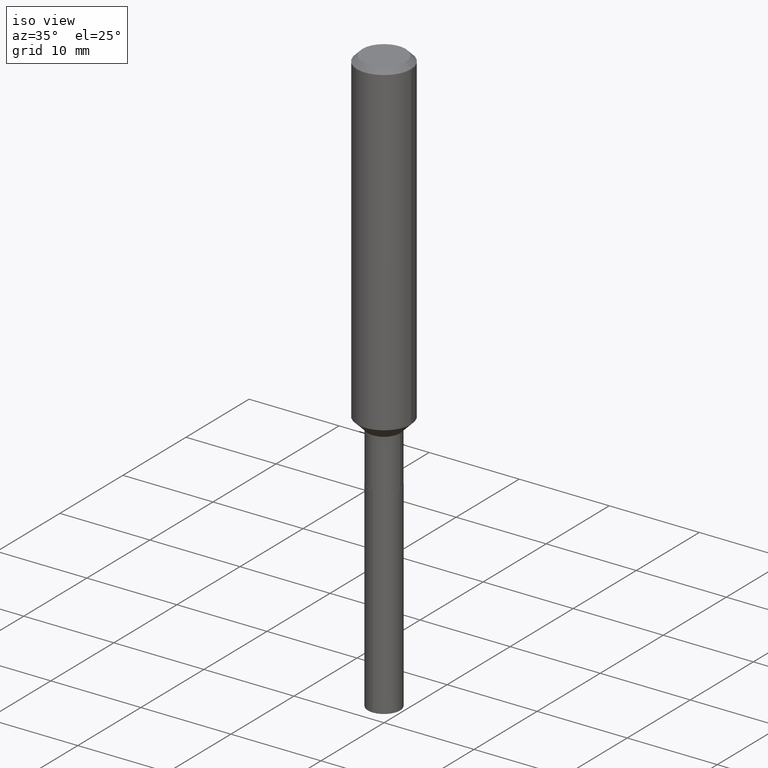
[diagram: clean part render]
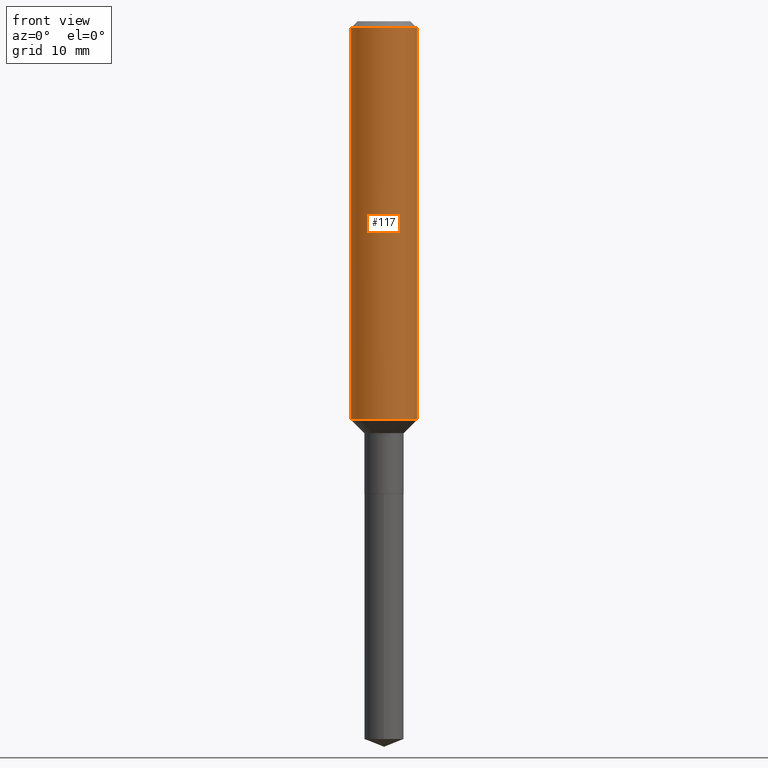
[diagram: tour spotlight — one face highlighted and labeled with its STEP entity id]
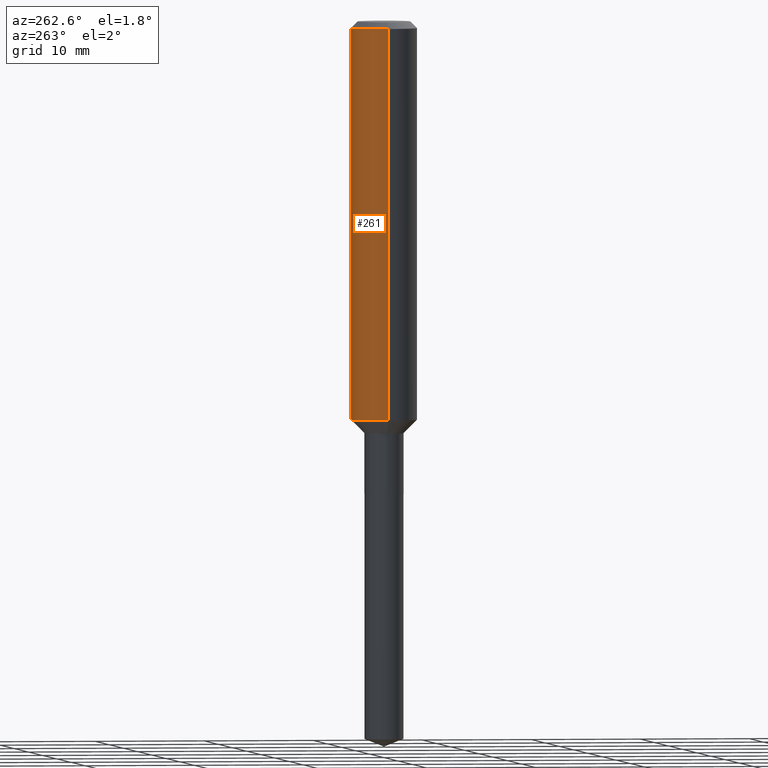
[diagram: tour spotlight — one face highlighted and labeled with its STEP entity id]
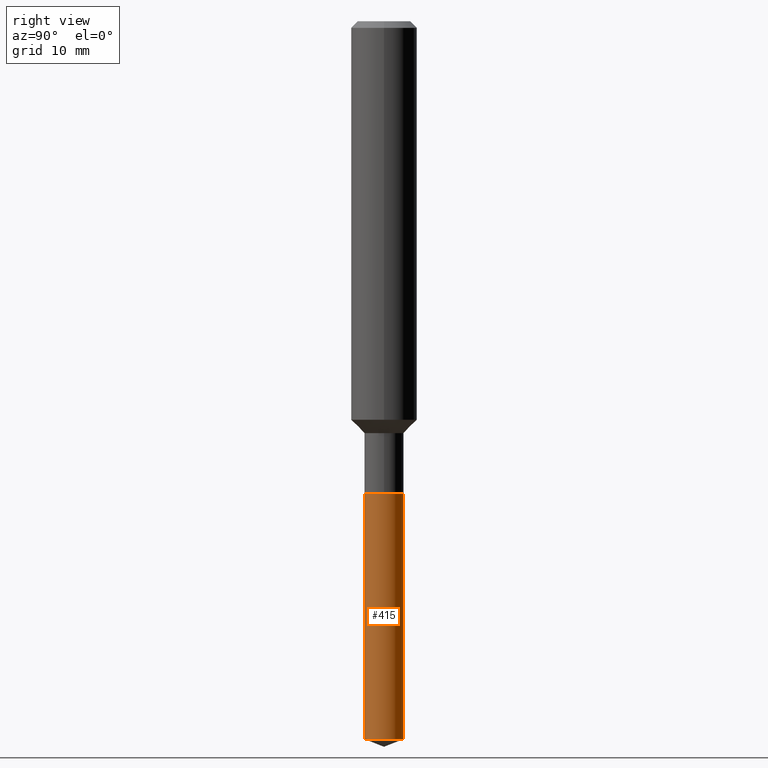
[diagram: tour spotlight — one face highlighted and labeled with its STEP entity id]
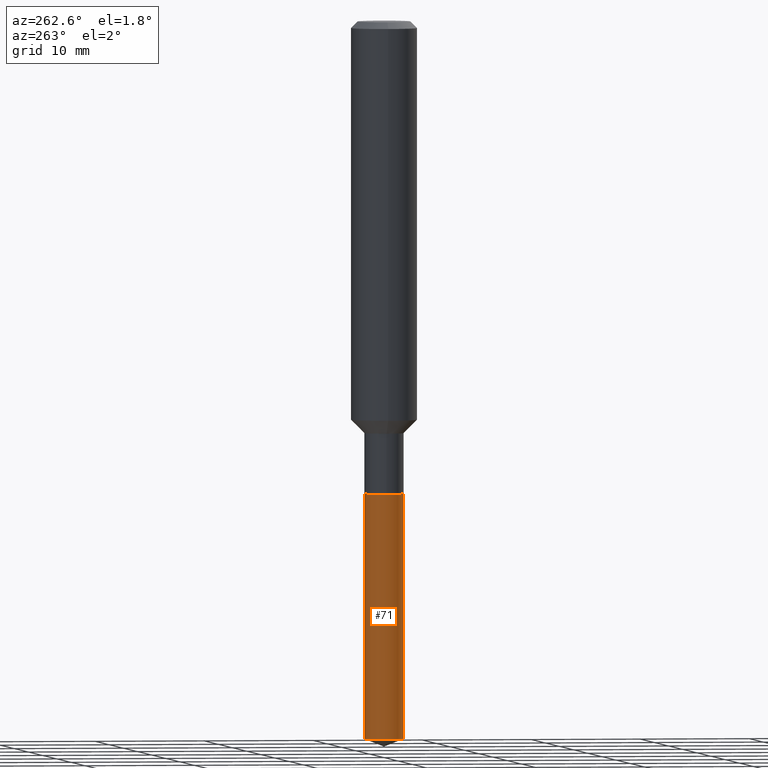
[diagram: tour spotlight — one face highlighted and labeled with its STEP entity id]
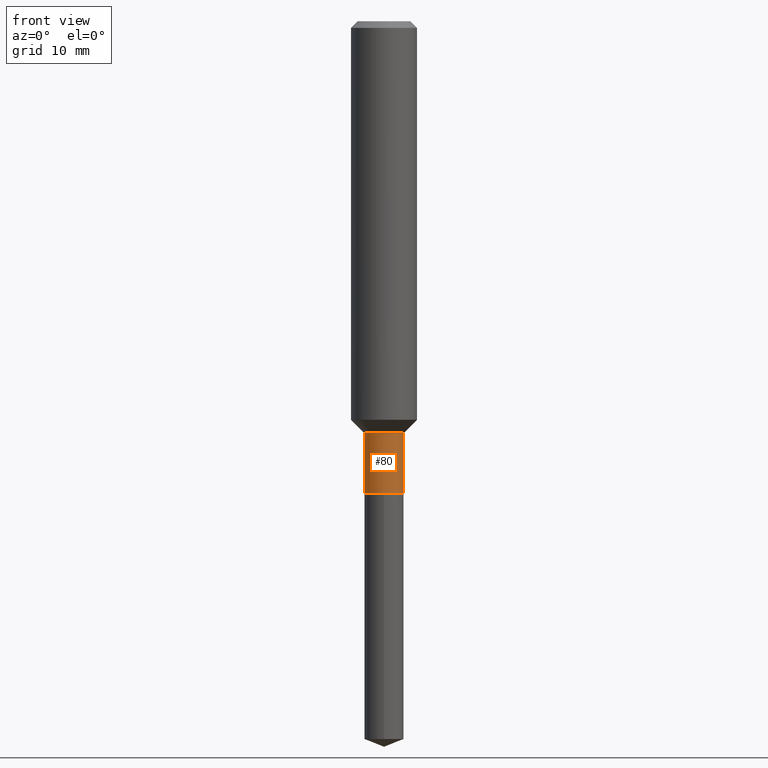
[diagram: tour spotlight — one face highlighted and labeled with its STEP entity id]
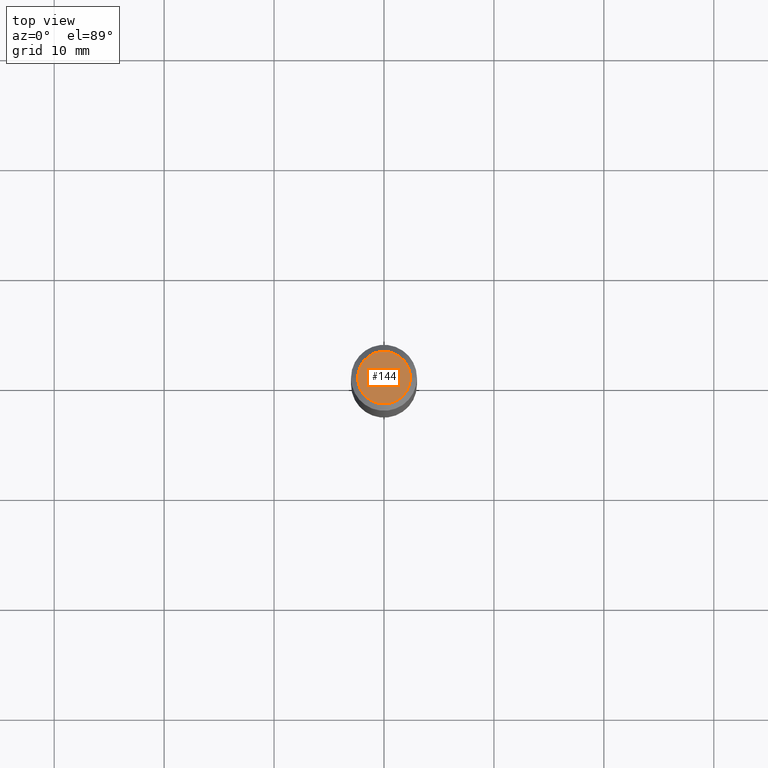
[diagram: tour spotlight — one face highlighted and labeled with its STEP entity id]
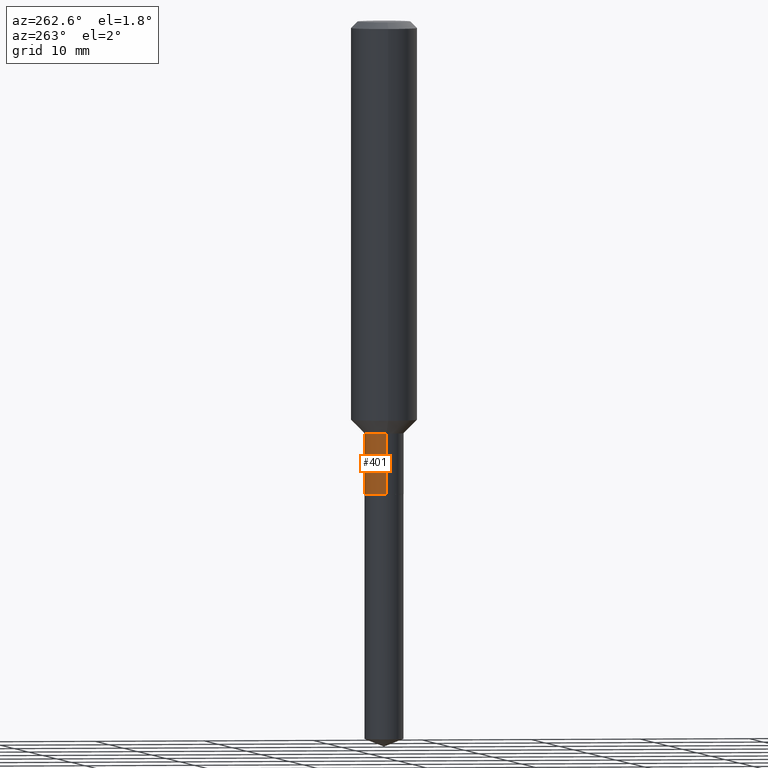
[diagram: tour spotlight — one face highlighted and labeled with its STEP entity id]
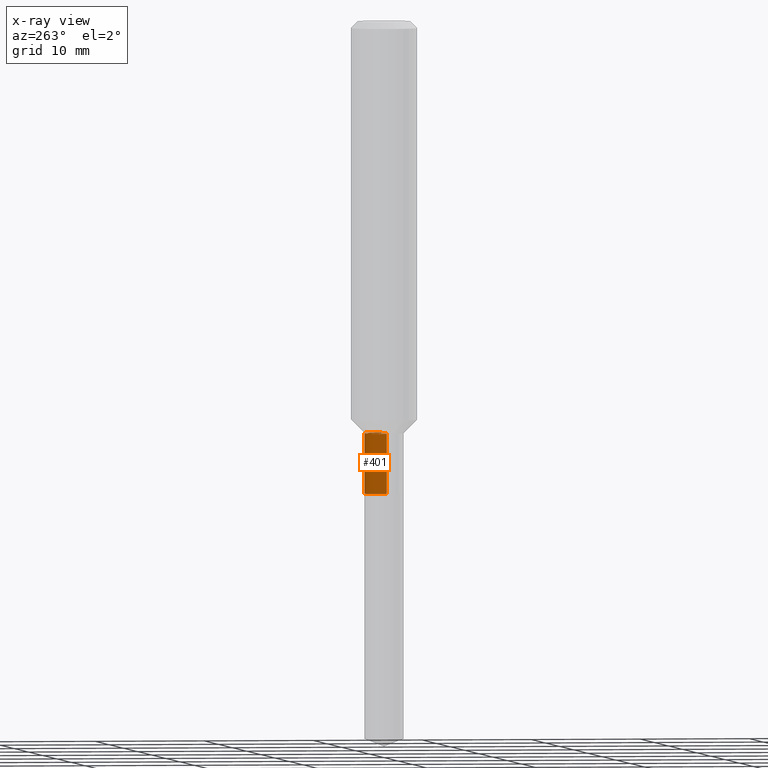
[diagram: x-ray of the same camera — body ghosted, this tour face saturated]
A machine part: a face-by-face anatomy tour. The part has 17 B-rep faces; the first image is the clean iso view, then the 7 largest visible faces are spotlighted one at a time (largest first), each with its STEP entity span.

Face 1 — front view, entity #117. In plain terms, the highlighted cylindrical surface (edge-blend (fillet) strip) has radius 2.9997 mm, axis along (-0, 0, 1).
Definition (entity closure, byte-faithful):
#9 = DIRECTION ( 'NONE',  ( -2.445468806185136877E-29, 3.491481338843145188E-15, 1.000000000000000000 ) ) ;
#42 = LINE ( 'NONE', #337, #305 ) ;
#57 = ORIENTED_EDGE ( 'NONE', *, *, #345, .T. ) ;
#86 = CIRCLE ( 'NONE', #147, 0.1181000000000001632 ) ;
#87 = EDGE_CURVE ( 'NONE', #243, #329, #153, .T. ) ;
#117 = ADVANCED_FACE ( 'NONE', ( #301 ), #225, .T. ) ;
#128 = CARTESIAN_POINT ( 'NONE',  ( 0.1180999999999999966, -9.071566814582237199E-16, -0.02362000000000014435 ) ) ;
#147 = AXIS2_PLACEMENT_3D ( 'NONE', #241, #387, #382 ) ;
#153 = LINE ( 'NONE', #454, #380 ) ;
#155 = EDGE_CURVE ( 'NONE', #200, #483, #42, .T. ) ;
#158 = CIRCLE ( 'NONE', #471, 0.1180999999999999966 ) ;
#187 = ORIENTED_EDGE ( 'NONE', *, *, #155, .F. ) ;
#199 = CARTESIAN_POINT ( 'NONE',  ( 0.1181000000000001632, -5.807380910897803330E-15, -1.427100000000000257 ) ) ;
#200 = VERTEX_POINT ( 'NONE', #378 ) ;
#217 = CARTESIAN_POINT ( 'NONE',  ( -0.1180999999999999966, -1.693429933010585093E-15, -0.02362000000000014435 ) ) ;
#225 = CYLINDRICAL_SURFACE ( 'NONE', #449, 0.1181000000000000799 ) ;
#241 = CARTESIAN_POINT ( 'NONE',  ( 3.489928533306808856E-29, -4.982693018663053490E-15, -1.427100000000000257 ) ) ;
#243 = VERTEX_POINT ( 'NONE', #199 ) ;
#284 = DIRECTION ( 'NONE',  ( -2.445468806185136597E-29, 3.491481338843145583E-15, 1.000000000000000000 ) ) ;
#292 = DIRECTION ( 'NONE',  ( 1.000000000000000000, -6.982962677686266711E-15, 0.000000000000000000 ) ) ;
#298 = DIRECTION ( 'NONE',  ( 1.000000000000000000, -6.982962677686266711E-15, 4.876176775795936353E-29 ) ) ;
#301 = FACE_OUTER_BOUND ( 'NONE', #423, .T. ) ;
#305 = VECTOR ( 'NONE', #456, 39.37007874015748143 ) ;
#329 = VERTEX_POINT ( 'NONE', #128 ) ;
#337 = CARTESIAN_POINT ( 'NONE',  ( -0.1181000000000000799, 8.391509709326788873E-16, -5.809262341591047988E-30 ) ) ;
#345 = EDGE_CURVE ( 'NONE', #200, #243, #86, .T. ) ;
#365 = ORIENTED_EDGE ( 'NONE', *, *, #467, .F. ) ;
#372 = CARTESIAN_POINT ( 'NONE',  ( 0.000000000000000000, 0.000000000000000000, 0.000000000000000000 ) ) ;
#378 = CARTESIAN_POINT ( 'NONE',  ( -0.1181000000000001632, -4.143542047730375293E-15, -1.427100000000000257 ) ) ;
#380 = VECTOR ( 'NONE', #9, 39.37007874015748143 ) ;
#382 = DIRECTION ( 'NONE',  ( 1.000000000000000000, -6.982962677686263555E-15, 0.000000000000000000 ) ) ;
#387 = DIRECTION ( 'NONE',  ( -2.445468806185136597E-29, 3.491481338843145583E-15, 1.000000000000000000 ) ) ;
#391 = ORIENTED_EDGE ( 'NONE', *, *, #87, .T. ) ;
#400 = CARTESIAN_POINT ( 'NONE',  ( 5.776197320209328408E-31, -8.246878922347560526E-17, -0.02362000000000014435 ) ) ;
#412 = DIRECTION ( 'NONE',  ( -2.445468806185136597E-29, 3.491481338843145583E-15, 1.000000000000000000 ) ) ;
#423 = EDGE_LOOP ( 'NONE', ( #187, #57, #391, #365 ) ) ;
#449 = AXIS2_PLACEMENT_3D ( 'NONE', #372, #412, #298 ) ;
#454 = CARTESIAN_POINT ( 'NONE',  ( 0.1181000000000000799, -8.246878922347486570E-16, 5.758764772215004644E-30 ) ) ;
#456 = DIRECTION ( 'NONE',  ( -2.445468806185136877E-29, 3.491481338843145188E-15, 1.000000000000000000 ) ) ;
#467 = EDGE_CURVE ( 'NONE', #483, #329, #158, .T. ) ;
#471 = AXIS2_PLACEMENT_3D ( 'NONE', #400, #284, #292 ) ;
#483 = VERTEX_POINT ( 'NONE', #217 ) ;

Face 2 — auxiliary view, entity #261. In plain terms, the highlighted cylindrical surface (edge-blend (fillet) strip) has radius 2.9997 mm, axis along (-0, 0, 1).
Definition (entity closure, byte-faithful):
#9 = DIRECTION ( 'NONE',  ( -2.445468806185136877E-29, 3.491481338843145188E-15, 1.000000000000000000 ) ) ;
#17 = CYLINDRICAL_SURFACE ( 'NONE', #234, 0.1181000000000000799 ) ;
#42 = LINE ( 'NONE', #337, #305 ) ;
#43 = AXIS2_PLACEMENT_3D ( 'NONE', #156, #265, #343 ) ;
#50 = CARTESIAN_POINT ( 'NONE',  ( 0.000000000000000000, 0.000000000000000000, 0.000000000000000000 ) ) ;
#56 = DIRECTION ( 'NONE',  ( -2.445468806185136597E-29, 3.491481338843145583E-15, 1.000000000000000000 ) ) ;
#67 = CIRCLE ( 'NONE', #394, 0.1180999999999999966 ) ;
#76 = EDGE_CURVE ( 'NONE', #243, #200, #106, .T. ) ;
#87 = EDGE_CURVE ( 'NONE', #243, #329, #153, .T. ) ;
#96 = ORIENTED_EDGE ( 'NONE', *, *, #76, .T. ) ;
#103 = ORIENTED_EDGE ( 'NONE', *, *, #230, .F. ) ;
#106 = CIRCLE ( 'NONE', #43, 0.1181000000000001632 ) ;
#128 = CARTESIAN_POINT ( 'NONE',  ( 0.1180999999999999966, -9.071566814582237199E-16, -0.02362000000000014435 ) ) ;
#136 = EDGE_LOOP ( 'NONE', ( #96, #182, #103, #360 ) ) ;
#153 = LINE ( 'NONE', #454, #380 ) ;
#155 = EDGE_CURVE ( 'NONE', #200, #483, #42, .T. ) ;
#156 = CARTESIAN_POINT ( 'NONE',  ( 3.489928533306808856E-29, -4.982693018663053490E-15, -1.427100000000000257 ) ) ;
#161 = DIRECTION ( 'NONE',  ( -2.445468806185136597E-29, 3.491481338843145583E-15, 1.000000000000000000 ) ) ;
#182 = ORIENTED_EDGE ( 'NONE', *, *, #155, .T. ) ;
#199 = CARTESIAN_POINT ( 'NONE',  ( 0.1181000000000001632, -5.807380910897803330E-15, -1.427100000000000257 ) ) ;
#200 = VERTEX_POINT ( 'NONE', #378 ) ;
#217 = CARTESIAN_POINT ( 'NONE',  ( -0.1180999999999999966, -1.693429933010585093E-15, -0.02362000000000014435 ) ) ;
#230 = EDGE_CURVE ( 'NONE', #329, #483, #67, .T. ) ;
#234 = AXIS2_PLACEMENT_3D ( 'NONE', #50, #56, #426 ) ;
#243 = VERTEX_POINT ( 'NONE', #199 ) ;
#261 = ADVANCED_FACE ( 'NONE', ( #384 ), #17, .T. ) ;
#265 = DIRECTION ( 'NONE',  ( -2.445468806185136597E-29, 3.491481338843145583E-15, 1.000000000000000000 ) ) ;
#305 = VECTOR ( 'NONE', #456, 39.37007874015748143 ) ;
#329 = VERTEX_POINT ( 'NONE', #128 ) ;
#337 = CARTESIAN_POINT ( 'NONE',  ( -0.1181000000000000799, 8.391509709326788873E-16, -5.809262341591047988E-30 ) ) ;
#343 = DIRECTION ( 'NONE',  ( 1.000000000000000000, -6.982962677686263555E-15, 0.000000000000000000 ) ) ;
#348 = DIRECTION ( 'NONE',  ( 1.000000000000000000, -6.982962677686266711E-15, 0.000000000000000000 ) ) ;
#360 = ORIENTED_EDGE ( 'NONE', *, *, #87, .F. ) ;
#378 = CARTESIAN_POINT ( 'NONE',  ( -0.1181000000000001632, -4.143542047730375293E-15, -1.427100000000000257 ) ) ;
#380 = VECTOR ( 'NONE', #9, 39.37007874015748143 ) ;
#384 = FACE_OUTER_BOUND ( 'NONE', #136, .T. ) ;
#394 = AXIS2_PLACEMENT_3D ( 'NONE', #462, #161, #348 ) ;
#426 = DIRECTION ( 'NONE',  ( 1.000000000000000000, -6.982962677686266711E-15, 4.876176775795936353E-29 ) ) ;
#454 = CARTESIAN_POINT ( 'NONE',  ( 0.1181000000000000799, -8.246878922347486570E-16, 5.758764772215004644E-30 ) ) ;
#456 = DIRECTION ( 'NONE',  ( -2.445468806185136877E-29, 3.491481338843145188E-15, 1.000000000000000000 ) ) ;
#462 = CARTESIAN_POINT ( 'NONE',  ( 5.776197320209328408E-31, -8.246878922347560526E-17, -0.02362000000000014435 ) ) ;
#483 = VERTEX_POINT ( 'NONE', #217 ) ;

Face 3 — right view, entity #415. In plain terms, the highlighted cylindrical surface (edge-blend (fillet) strip) has radius 1.7856 mm, axis along (-0, 0, 1).
Definition (entity closure, byte-faithful):
#26 = CYLINDRICAL_SURFACE ( 'NONE', #458, 0.07029999999999998750 ) ;
#28 = FACE_OUTER_BOUND ( 'NONE', #68, .T. ) ;
#65 = VERTEX_POINT ( 'NONE', #233 ) ;
#68 = EDGE_LOOP ( 'NONE', ( #469, #100, #253, #364 ) ) ;
#69 = EDGE_CURVE ( 'NONE', #65, #317, #349, .T. ) ;
#70 = CARTESIAN_POINT ( 'NONE',  ( 6.297271338363965962E-29, -8.957480559017389786E-15, -2.570308093564269925 ) ) ;
#79 = DIRECTION ( 'NONE',  ( -6.982962677686265133E-15, -1.000000000000000000, 3.885985766236505386E-15 ) ) ;
#97 = DIRECTION ( 'NONE',  ( -2.458755392801124344E-29, 3.472454190583505312E-15, 1.000000000000000000 ) ) ;
#100 = ORIENTED_EDGE ( 'NONE', *, *, #407, .T. ) ;
#137 = DIRECTION ( 'NONE',  ( -6.982962677686266711E-15, -1.000000000000000000, 3.885985766236506175E-15 ) ) ;
#139 = CIRCLE ( 'NONE', #174, 0.07030000000000000138 ) ;
#141 = DIRECTION ( 'NONE',  ( -2.458755392801124064E-29, 3.472454190583504917E-15, 1.000000000000000000 ) ) ;
#174 = AXIS2_PLACEMENT_3D ( 'NONE', #416, #263, #79 ) ;
#180 = EDGE_CURVE ( 'NONE', #185, #324, #139, .T. ) ;
#185 = VERTEX_POINT ( 'NONE', #231 ) ;
#201 = CARTESIAN_POINT ( 'NONE',  ( 4.995115432394133521E-16, 0.07029999999999408944, -1.692500000000000338 ) ) ;
#231 = CARTESIAN_POINT ( 'NONE',  ( -4.909022762413031377E-16, -0.07030000000000589944, -1.692499999999999671 ) ) ;
#233 = CARTESIAN_POINT ( 'NONE',  ( -4.909022762412812468E-16, -0.07030000000000892479, -2.570308093564269925 ) ) ;
#248 = CARTESIAN_POINT ( 'NONE',  ( -4.909022762413030391E-16, -0.07030000000000589944, -1.692499999999999671 ) ) ;
#253 = ORIENTED_EDGE ( 'NONE', *, *, #180, .F. ) ;
#263 = DIRECTION ( 'NONE',  ( -2.458755392801124064E-29, 3.472454190583504917E-15, 1.000000000000000000 ) ) ;
#286 = LINE ( 'NONE', #248, #421 ) ;
#317 = VERTEX_POINT ( 'NONE', #461 ) ;
#321 = CARTESIAN_POINT ( 'NONE',  ( 4.995115432393916584E-16, 0.07029999999999408944, -1.692500000000000338 ) ) ;
#323 = CARTESIAN_POINT ( 'NONE',  ( 4.138955954468343780E-29, -5.909332165992023872E-15, -1.692500000000000115 ) ) ;
#324 = VERTEX_POINT ( 'NONE', #201 ) ;
#333 = DIRECTION ( 'NONE',  ( -6.982962677686265133E-15, -1.000000000000000000, 0.000000000000000000 ) ) ;
#349 = CIRCLE ( 'NONE', #413, 0.07029999999999998750 ) ;
#364 = ORIENTED_EDGE ( 'NONE', *, *, #489, .F. ) ;
#407 = EDGE_CURVE ( 'NONE', #317, #324, #482, .T. ) ;
#413 = AXIS2_PLACEMENT_3D ( 'NONE', #70, #418, #333 ) ;
#415 = ADVANCED_FACE ( 'NONE', ( #28 ), #26, .T. ) ;
#416 = CARTESIAN_POINT ( 'NONE',  ( 4.138955954468343780E-29, -5.909332165992023872E-15, -1.692500000000000115 ) ) ;
#418 = DIRECTION ( 'NONE',  ( -2.458755392801124064E-29, 3.472454190583504917E-15, 1.000000000000000000 ) ) ;
#421 = VECTOR ( 'NONE', #97, 39.37007874015748143 ) ;
#458 = AXIS2_PLACEMENT_3D ( 'NONE', #323, #141, #137 ) ;
#461 = CARTESIAN_POINT ( 'NONE',  ( 4.995115432394130563E-16, 0.07029999999999100857, -2.570308093564269925 ) ) ;
#463 = VECTOR ( 'NONE', #475, 39.37007874015748143 ) ;
#469 = ORIENTED_EDGE ( 'NONE', *, *, #69, .T. ) ;
#475 = DIRECTION ( 'NONE',  ( -2.458755392801124344E-29, 3.472454190583505312E-15, 1.000000000000000000 ) ) ;
#482 = LINE ( 'NONE', #321, #463 ) ;
#489 = EDGE_CURVE ( 'NONE', #65, #185, #286, .T. ) ;

Face 4 — auxiliary view, entity #71. In plain terms, the highlighted cylindrical surface (edge-blend (fillet) strip) has radius 1.7856 mm, axis along (-0, 0, 1).
Definition (entity closure, byte-faithful):
#1 = DIRECTION ( 'NONE',  ( -2.458755392801124064E-29, 3.472454190583504917E-15, 1.000000000000000000 ) ) ;
#33 = CARTESIAN_POINT ( 'NONE',  ( 4.138955954468343780E-29, -5.909332165992023872E-15, -1.692500000000000115 ) ) ;
#53 = CIRCLE ( 'NONE', #204, 0.07029999999999998750 ) ;
#65 = VERTEX_POINT ( 'NONE', #233 ) ;
#71 = ADVANCED_FACE ( 'NONE', ( #487 ), #223, .T. ) ;
#97 = DIRECTION ( 'NONE',  ( -2.458755392801124344E-29, 3.472454190583505312E-15, 1.000000000000000000 ) ) ;
#160 = EDGE_CURVE ( 'NONE', #324, #185, #258, .T. ) ;
#164 = EDGE_LOOP ( 'NONE', ( #282, #474, #436, #176 ) ) ;
#176 = ORIENTED_EDGE ( 'NONE', *, *, #160, .F. ) ;
#185 = VERTEX_POINT ( 'NONE', #231 ) ;
#201 = CARTESIAN_POINT ( 'NONE',  ( 4.995115432394133521E-16, 0.07029999999999408944, -1.692500000000000338 ) ) ;
#204 = AXIS2_PLACEMENT_3D ( 'NONE', #444, #254, #250 ) ;
#223 = CYLINDRICAL_SURFACE ( 'NONE', #457, 0.07029999999999998750 ) ;
#229 = DIRECTION ( 'NONE',  ( -6.982962677686266711E-15, -1.000000000000000000, 3.885985766236506175E-15 ) ) ;
#231 = CARTESIAN_POINT ( 'NONE',  ( -4.909022762413031377E-16, -0.07030000000000589944, -1.692499999999999671 ) ) ;
#233 = CARTESIAN_POINT ( 'NONE',  ( -4.909022762412812468E-16, -0.07030000000000892479, -2.570308093564269925 ) ) ;
#248 = CARTESIAN_POINT ( 'NONE',  ( -4.909022762413030391E-16, -0.07030000000000589944, -1.692499999999999671 ) ) ;
#250 = DIRECTION ( 'NONE',  ( -6.982962677686265133E-15, -1.000000000000000000, 0.000000000000000000 ) ) ;
#254 = DIRECTION ( 'NONE',  ( -2.458755392801124064E-29, 3.472454190583504917E-15, 1.000000000000000000 ) ) ;
#258 = CIRCLE ( 'NONE', #283, 0.07030000000000000138 ) ;
#282 = ORIENTED_EDGE ( 'NONE', *, *, #407, .F. ) ;
#283 = AXIS2_PLACEMENT_3D ( 'NONE', #304, #307, #409 ) ;
#286 = LINE ( 'NONE', #248, #421 ) ;
#304 = CARTESIAN_POINT ( 'NONE',  ( 4.138955954468343780E-29, -5.909332165992023872E-15, -1.692500000000000115 ) ) ;
#307 = DIRECTION ( 'NONE',  ( -2.458755392801124064E-29, 3.472454190583504917E-15, 1.000000000000000000 ) ) ;
#317 = VERTEX_POINT ( 'NONE', #461 ) ;
#321 = CARTESIAN_POINT ( 'NONE',  ( 4.995115432393916584E-16, 0.07029999999999408944, -1.692500000000000338 ) ) ;
#324 = VERTEX_POINT ( 'NONE', #201 ) ;
#407 = EDGE_CURVE ( 'NONE', #317, #324, #482, .T. ) ;
#409 = DIRECTION ( 'NONE',  ( -6.982962677686265133E-15, -1.000000000000000000, 3.885985766236505386E-15 ) ) ;
#421 = VECTOR ( 'NONE', #97, 39.37007874015748143 ) ;
#436 = ORIENTED_EDGE ( 'NONE', *, *, #489, .T. ) ;
#444 = CARTESIAN_POINT ( 'NONE',  ( 6.297271338363965962E-29, -8.957480559017389786E-15, -2.570308093564269925 ) ) ;
#457 = AXIS2_PLACEMENT_3D ( 'NONE', #33, #1, #229 ) ;
#461 = CARTESIAN_POINT ( 'NONE',  ( 4.995115432394130563E-16, 0.07029999999999100857, -2.570308093564269925 ) ) ;
#463 = VECTOR ( 'NONE', #475, 39.37007874015748143 ) ;
#474 = ORIENTED_EDGE ( 'NONE', *, *, #477, .T. ) ;
#475 = DIRECTION ( 'NONE',  ( -2.458755392801124344E-29, 3.472454190583505312E-15, 1.000000000000000000 ) ) ;
#477 = EDGE_CURVE ( 'NONE', #317, #65, #53, .T. ) ;
#482 = LINE ( 'NONE', #321, #463 ) ;
#487 = FACE_OUTER_BOUND ( 'NONE', #164, .T. ) ;
#489 = EDGE_CURVE ( 'NONE', #65, #185, #286, .T. ) ;

Face 5 — front view, entity #80. In plain terms, the highlighted cylindrical surface (edge-blend (fillet) strip) has radius 1.7856 mm, axis along (-0, 0, 1).
Definition (entity closure, byte-faithful):
#10 = EDGE_CURVE ( 'NONE', #425, #445, #310, .T. ) ;
#15 = AXIS2_PLACEMENT_3D ( 'NONE', #25, #138, #399 ) ;
#25 = CARTESIAN_POINT ( 'NONE',  ( 4.137733220065251539E-29, -5.907586425322602368E-15, -1.692000000000000171 ) ) ;
#36 = CYLINDRICAL_SURFACE ( 'NONE', #318, 0.07029999999999998750 ) ;
#37 = VECTOR ( 'NONE', #54, 39.37007874015748143 ) ;
#38 = DIRECTION ( 'NONE',  ( 1.000000000000000000, -6.982962677686266711E-15, 4.876176775795935232E-29 ) ) ;
#45 = VECTOR ( 'NONE', #220, 39.37007874015748143 ) ;
#47 = CARTESIAN_POINT ( 'NONE',  ( 0.07029999999999998750, -4.909022762413444543E-16, 3.427952273384541736E-30 ) ) ;
#52 = CIRCLE ( 'NONE', #157, 0.07029999999999997362 ) ;
#54 = DIRECTION ( 'NONE',  ( -2.445468806185136877E-29, 3.491481338843145188E-15, 1.000000000000000000 ) ) ;
#73 = DIRECTION ( 'NONE',  ( -2.445468806185136597E-29, 3.491481338843145583E-15, 1.000000000000000000 ) ) ;
#80 = ADVANCED_FACE ( 'NONE', ( #303 ), #36, .T. ) ;
#99 = CARTESIAN_POINT ( 'NONE',  ( -0.07029999999999998750, 4.995115432393503418E-16, -3.458011368449198169E-30 ) ) ;
#129 = DIRECTION ( 'NONE',  ( -2.445468806185136597E-29, 3.491481338843145583E-15, 1.000000000000000000 ) ) ;
#138 = DIRECTION ( 'NONE',  ( -2.445468806185136597E-29, 3.491481338843145583E-15, 1.000000000000000000 ) ) ;
#143 = CARTESIAN_POINT ( 'NONE',  ( -0.07030000000000000138, -5.029074582751829501E-15, -1.692000000000000171 ) ) ;
#157 = AXIS2_PLACEMENT_3D ( 'NONE', #314, #129, #279 ) ;
#162 = ORIENTED_EDGE ( 'NONE', *, *, #10, .T. ) ;
#172 = CARTESIAN_POINT ( 'NONE',  ( -0.07029999999999997362, -5.029074582751829501E-15, -1.474900000000000100 ) ) ;
#220 = DIRECTION ( 'NONE',  ( -2.445468806185136877E-29, 3.491481338843145188E-15, 1.000000000000000000 ) ) ;
#239 = ORIENTED_EDGE ( 'NONE', *, *, #355, .T. ) ;
#242 = EDGE_CURVE ( 'NONE', #476, #293, #52, .T. ) ;
#279 = DIRECTION ( 'NONE',  ( 1.000000000000000000, -6.982962677686268288E-15, 0.000000000000000000 ) ) ;
#285 = EDGE_LOOP ( 'NONE', ( #442, #162, #239, #427 ) ) ;
#288 = LINE ( 'NONE', #99, #45 ) ;
#293 = VERTEX_POINT ( 'NONE', #466 ) ;
#303 = FACE_OUTER_BOUND ( 'NONE', #285, .T. ) ;
#310 = CIRCLE ( 'NONE', #15, 0.07030000000000000138 ) ;
#314 = CARTESIAN_POINT ( 'NONE',  ( 3.606821942242458368E-29, -5.149585826659756331E-15, -1.474900000000000100 ) ) ;
#316 = LINE ( 'NONE', #47, #37 ) ;
#318 = AXIS2_PLACEMENT_3D ( 'NONE', #379, #73, #38 ) ;
#355 = EDGE_CURVE ( 'NONE', #445, #293, #316, .T. ) ;
#379 = CARTESIAN_POINT ( 'NONE',  ( 0.000000000000000000, 0.000000000000000000, 0.000000000000000000 ) ) ;
#399 = DIRECTION ( 'NONE',  ( 1.000000000000000000, -6.982962677686265133E-15, 0.000000000000000000 ) ) ;
#425 = VERTEX_POINT ( 'NONE', #143 ) ;
#427 = ORIENTED_EDGE ( 'NONE', *, *, #242, .F. ) ;
#437 = EDGE_CURVE ( 'NONE', #425, #476, #288, .T. ) ;
#440 = CARTESIAN_POINT ( 'NONE',  ( 0.07030000000000000138, -6.398488701563947316E-15, -1.692000000000000171 ) ) ;
#442 = ORIENTED_EDGE ( 'NONE', *, *, #437, .F. ) ;
#445 = VERTEX_POINT ( 'NONE', #440 ) ;
#466 = CARTESIAN_POINT ( 'NONE',  ( 0.07029999999999997362, -5.640488102901100489E-15, -1.474900000000000100 ) ) ;
#476 = VERTEX_POINT ( 'NONE', #172 ) ;

Face 6 — top view, entity #144. In plain terms, the highlighted planar face has unit normal (0, -0, -1).
Definition (entity closure, byte-faithful):
#49 = VERTEX_POINT ( 'NONE', #406 ) ;
#62 = DIRECTION ( 'NONE',  ( 1.000000000000000000, -6.982962677686267499E-15, 4.875432709231658792E-29 ) ) ;
#82 = DIRECTION ( 'NONE',  ( -1.000000000000000000, 6.982962677686265922E-15, -4.876176775795935793E-29 ) ) ;
#95 = DIRECTION ( 'NONE',  ( 1.000000000000000000, -6.982962677686267499E-15, 4.875432709231658792E-29 ) ) ;
#102 = DIRECTION ( 'NONE',  ( -2.445468806185136597E-29, 3.491481338843145583E-15, 1.000000000000000000 ) ) ;
#132 = AXIS2_PLACEMENT_3D ( 'NONE', #432, #102, #62 ) ;
#144 = ADVANCED_FACE ( 'NONE', ( #191 ), #339, .F. ) ;
#149 = CIRCLE ( 'NONE', #132, 0.09447999999999998066 ) ;
#189 = CARTESIAN_POINT ( 'NONE',  ( 3.301506705810441154E-46, -4.713676585956823162E-32, -1.350050631380041873E-17 ) ) ;
#191 = FACE_OUTER_BOUND ( 'NONE', #388, .T. ) ;
#195 = AXIS2_PLACEMENT_3D ( 'NONE', #420, #383, #95 ) ;
#202 = ORIENTED_EDGE ( 'NONE', *, *, #481, .T. ) ;
#246 = ORIENTED_EDGE ( 'NONE', *, *, #247, .T. ) ;
#247 = EDGE_CURVE ( 'NONE', #385, #49, #327, .T. ) ;
#327 = CIRCLE ( 'NONE', #195, 0.09447999999999998066 ) ;
#336 = DIRECTION ( 'NONE',  ( 2.438088387897960049E-29, -3.491481338843145188E-15, -1.000000000000000000 ) ) ;
#339 = PLANE ( 'NONE',  #350 ) ;
#350 = AXIS2_PLACEMENT_3D ( 'NONE', #189, #336, #82 ) ;
#358 = CARTESIAN_POINT ( 'NONE',  ( 0.09447999999999998066, -7.704367267948738690E-16, -2.700101262759583929E-17 ) ) ;
#383 = DIRECTION ( 'NONE',  ( -2.445468806185136597E-29, 3.491481338843145583E-15, 1.000000000000000000 ) ) ;
#385 = VERTEX_POINT ( 'NONE', #358 ) ;
#388 = EDGE_LOOP ( 'NONE', ( #202, #246 ) ) ;
#406 = CARTESIAN_POINT ( 'NONE',  ( -0.09447999999999998066, 7.009847083995354710E-16, -2.700101262760559836E-17 ) ) ;
#420 = CARTESIAN_POINT ( 'NONE',  ( 6.603013411620882309E-46, -9.427353171913646324E-32, -2.700101262760083747E-17 ) ) ;
#432 = CARTESIAN_POINT ( 'NONE',  ( 6.603013411620882309E-46, -9.427353171913646324E-32, -2.700101262760083747E-17 ) ) ;
#481 = EDGE_CURVE ( 'NONE', #49, #385, #149, .T. ) ;

Face 7 — auxiliary view, entity #401. An x-ray twin of the same camera follows (body ghosted, this face saturated) — the face is partly hidden behind the body. In plain terms, the highlighted cylindrical surface (edge-blend (fillet) strip) has radius 1.7856 mm, axis along (-0, 0, 1).
Definition (entity closure, byte-faithful):
#18 = ORIENTED_EDGE ( 'NONE', *, *, #320, .T. ) ;
#21 = DIRECTION ( 'NONE',  ( -2.445468806185136597E-29, 3.491481338843145583E-15, 1.000000000000000000 ) ) ;
#37 = VECTOR ( 'NONE', #54, 39.37007874015748143 ) ;
#45 = VECTOR ( 'NONE', #220, 39.37007874015748143 ) ;
#47 = CARTESIAN_POINT ( 'NONE',  ( 0.07029999999999998750, -4.909022762413444543E-16, 3.427952273384541736E-30 ) ) ;
#54 = DIRECTION ( 'NONE',  ( -2.445468806185136877E-29, 3.491481338843145188E-15, 1.000000000000000000 ) ) ;
#64 = CYLINDRICAL_SURFACE ( 'NONE', #386, 0.07029999999999998750 ) ;
#66 = DIRECTION ( 'NONE',  ( 1.000000000000000000, -6.982962677686266711E-15, 4.876176775795935232E-29 ) ) ;
#89 = DIRECTION ( 'NONE',  ( 1.000000000000000000, -6.982962677686265133E-15, 0.000000000000000000 ) ) ;
#99 = CARTESIAN_POINT ( 'NONE',  ( -0.07029999999999998750, 4.995115432393503418E-16, -3.458011368449198169E-30 ) ) ;
#121 = DIRECTION ( 'NONE',  ( -2.445468806185136597E-29, 3.491481338843145583E-15, 1.000000000000000000 ) ) ;
#143 = CARTESIAN_POINT ( 'NONE',  ( -0.07030000000000000138, -5.029074582751829501E-15, -1.692000000000000171 ) ) ;
#172 = CARTESIAN_POINT ( 'NONE',  ( -0.07029999999999997362, -5.029074582751829501E-15, -1.474900000000000100 ) ) ;
#177 = CARTESIAN_POINT ( 'NONE',  ( 0.000000000000000000, 0.000000000000000000, 0.000000000000000000 ) ) ;
#184 = CARTESIAN_POINT ( 'NONE',  ( 3.606821942242458368E-29, -5.149585826659756331E-15, -1.474900000000000100 ) ) ;
#197 = AXIS2_PLACEMENT_3D ( 'NONE', #184, #256, #403 ) ;
#219 = AXIS2_PLACEMENT_3D ( 'NONE', #275, #121, #89 ) ;
#220 = DIRECTION ( 'NONE',  ( -2.445468806185136877E-29, 3.491481338843145188E-15, 1.000000000000000000 ) ) ;
#244 = CIRCLE ( 'NONE', #219, 0.07030000000000000138 ) ;
#252 = FACE_OUTER_BOUND ( 'NONE', #395, .T. ) ;
#256 = DIRECTION ( 'NONE',  ( -2.445468806185136597E-29, 3.491481338843145583E-15, 1.000000000000000000 ) ) ;
#275 = CARTESIAN_POINT ( 'NONE',  ( 4.137733220065251539E-29, -5.907586425322602368E-15, -1.692000000000000171 ) ) ;
#288 = LINE ( 'NONE', #99, #45 ) ;
#289 = ORIENTED_EDGE ( 'NONE', *, *, #437, .T. ) ;
#293 = VERTEX_POINT ( 'NONE', #466 ) ;
#316 = LINE ( 'NONE', #47, #37 ) ;
#320 = EDGE_CURVE ( 'NONE', #445, #425, #244, .T. ) ;
#355 = EDGE_CURVE ( 'NONE', #445, #293, #316, .T. ) ;
#362 = ORIENTED_EDGE ( 'NONE', *, *, #355, .F. ) ;
#386 = AXIS2_PLACEMENT_3D ( 'NONE', #177, #21, #66 ) ;
#395 = EDGE_LOOP ( 'NONE', ( #18, #289, #480, #362 ) ) ;
#401 = ADVANCED_FACE ( 'NONE', ( #252 ), #64, .T. ) ;
#403 = DIRECTION ( 'NONE',  ( 1.000000000000000000, -6.982962677686268288E-15, 0.000000000000000000 ) ) ;
#425 = VERTEX_POINT ( 'NONE', #143 ) ;
#437 = EDGE_CURVE ( 'NONE', #425, #476, #288, .T. ) ;
#439 = EDGE_CURVE ( 'NONE', #293, #476, #490, .T. ) ;
#440 = CARTESIAN_POINT ( 'NONE',  ( 0.07030000000000000138, -6.398488701563947316E-15, -1.692000000000000171 ) ) ;
#445 = VERTEX_POINT ( 'NONE', #440 ) ;
#466 = CARTESIAN_POINT ( 'NONE',  ( 0.07029999999999997362, -5.640488102901100489E-15, -1.474900000000000100 ) ) ;
#476 = VERTEX_POINT ( 'NONE', #172 ) ;
#480 = ORIENTED_EDGE ( 'NONE', *, *, #439, .F. ) ;
#490 = CIRCLE ( 'NONE', #197, 0.07029999999999997362 ) ;